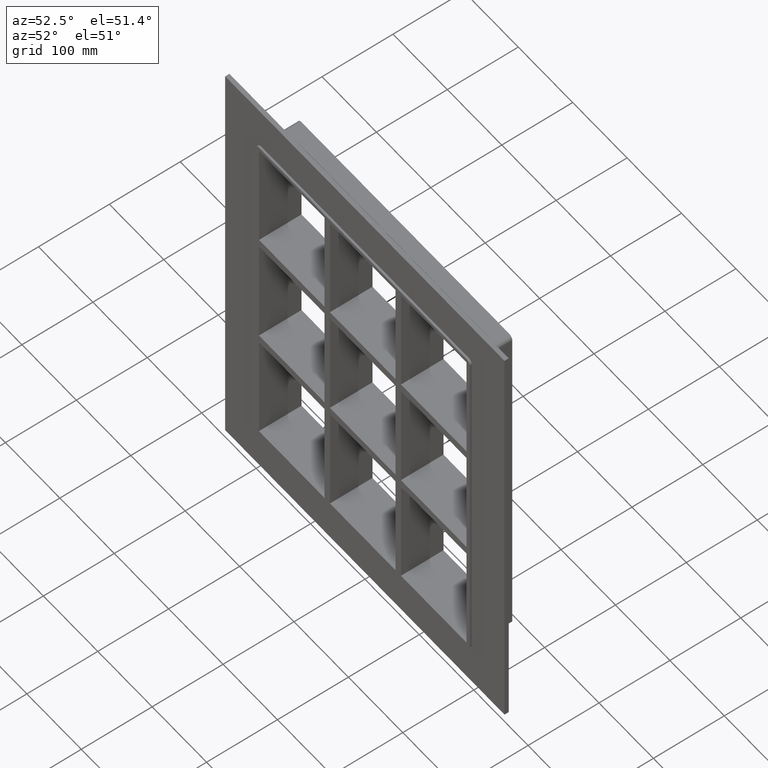
[diagram: clean part render]
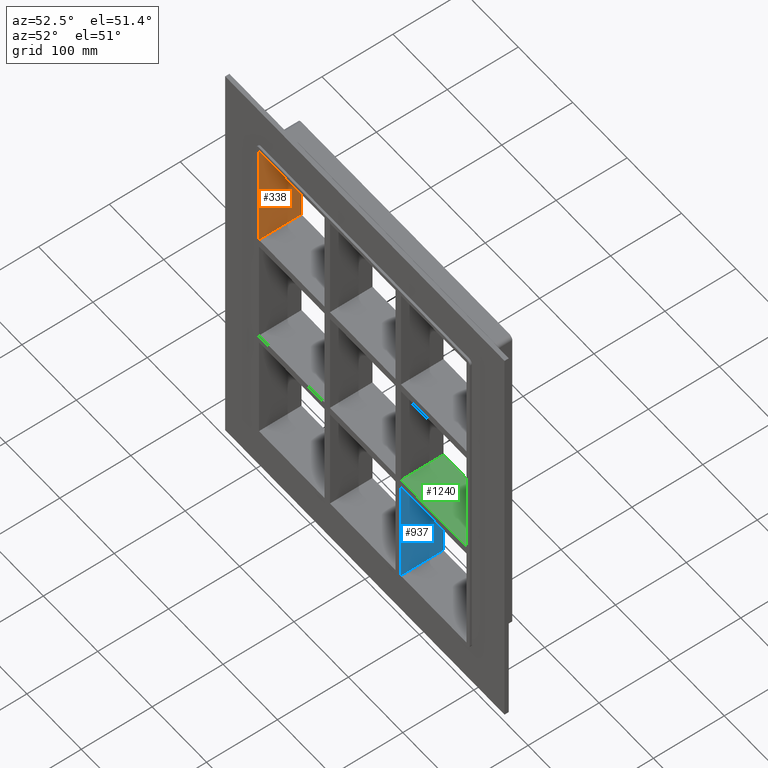
[diagram: same view with three faces highlighted in distinct colors, each labeled with its STEP entity id]
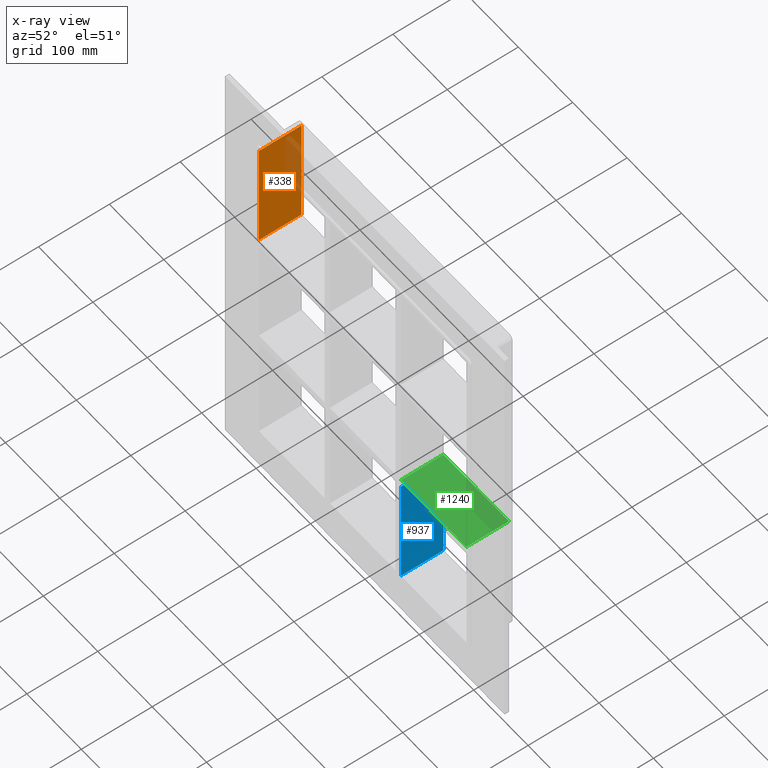
[diagram: x-ray of the same camera — body ghosted, the three highlighted faces saturated]
A machine part, auxiliary view with three faces highlighted in distinct colors.
The next image is the same camera in x-ray (body ghosted, the three faces saturated) — at least one of them is partly hidden behind the body in this view.
Their STEP definitions:

[orange] entity #338 — the highlighted planar face has unit normal (-1, 0, 0).
#203=CARTESIAN_POINT('',(-190.74999999999977,57.0,91.750000000000085));
#204=VERTEX_POINT('',#203);
#211=CARTESIAN_POINT('',(-190.74999999999977,-3.0,91.750000000000085));
#212=VERTEX_POINT('',#211);
#213=CARTESIAN_POINT('',(-190.75000000000011,-3.0,91.750000000000085));
#214=DIRECTION('',(0.0,1.0,0.0));
#215=VECTOR('',#214,60.000000000000007);
#216=LINE('',#213,#215);
#217=EDGE_CURVE('',#212,#204,#216,.T.);
#308=CARTESIAN_POINT('',(-190.75000000000011,0.0,-251.25000000000003));
#309=DIRECTION('',(-1.0,0.0,0.0));
#310=DIRECTION('',(0.0,0.0,1.0));
#311=AXIS2_PLACEMENT_3D('',#308,#309,#310);
#312=PLANE('',#311);
#313=ORIENTED_EDGE('',*,*,#217,.T.);
#314=CARTESIAN_POINT('',(-190.75000000000011,57.0,251.24999999999997));
#315=VERTEX_POINT('',#314);
#316=CARTESIAN_POINT('',(-190.75000000000011,57.0,251.25));
#317=DIRECTION('',(0.0,0.0,-1.0));
#318=VECTOR('',#317,159.49999999999989);
#319=LINE('',#316,#318);
#320=EDGE_CURVE('',#315,#204,#319,.T.);
#321=ORIENTED_EDGE('',*,*,#320,.F.);
#322=CARTESIAN_POINT('',(-190.75000000000011,-3.0,251.24999999999997));
#323=VERTEX_POINT('',#322);
#324=CARTESIAN_POINT('',(-190.75000000000011,-3.0,251.25));
#325=DIRECTION('',(0.0,1.0,0.0));
#326=VECTOR('',#325,60.0);
#327=LINE('',#324,#326);
#328=EDGE_CURVE('',#323,#315,#327,.T.);
#329=ORIENTED_EDGE('',*,*,#328,.F.);
#330=CARTESIAN_POINT('',(-190.75000000000011,-3.0,91.750000000000099));
#331=DIRECTION('',(0.0,0.0,1.0));
#332=VECTOR('',#331,159.49999999999989);
#333=LINE('',#330,#332);
#334=EDGE_CURVE('',#212,#323,#333,.T.);
#335=ORIENTED_EDGE('',*,*,#334,.F.);
#336=EDGE_LOOP('',(#313,#321,#329,#335));
#337=FACE_OUTER_BOUND('',#336,.T.);
#338=ADVANCED_FACE('',(#337),#312,.F.);

[blue] entity #937 — the highlighted planar face has unit normal (1, 0, 0).
#793=CARTESIAN_POINT('',(70.250000000003638,57.0,-251.24999999998425));
#794=VERTEX_POINT('',#793);
#811=CARTESIAN_POINT('',(70.250000000003638,57.0,-91.750000000009322));
#812=VERTEX_POINT('',#811);
#819=CARTESIAN_POINT('',(70.250000000003638,57.0,-91.750000000009294));
#820=DIRECTION('',(0.0,0.0,-1.0));
#821=VECTOR('',#820,159.49999999997493);
#822=LINE('',#819,#821);
#823=EDGE_CURVE('',#812,#794,#822,.T.);
#907=CARTESIAN_POINT('',(70.250000000003638,-3.0,251.24999999999997));
#908=DIRECTION('',(1.0,0.0,0.0));
#909=DIRECTION('',(0.0,0.0,-1.0));
#910=AXIS2_PLACEMENT_3D('',#907,#908,#909);
#911=PLANE('',#910);
#912=CARTESIAN_POINT('',(70.250000000003638,-3.0,-91.750000000009322));
#913=VERTEX_POINT('',#912);
#914=CARTESIAN_POINT('',(70.250000000003638,-3.0,-91.750000000009337));
#915=DIRECTION('',(0.0,1.0,0.0));
#916=VECTOR('',#915,60.0);
#917=LINE('',#914,#916);
#918=EDGE_CURVE('',#913,#812,#917,.T.);
#919=ORIENTED_EDGE('',*,*,#918,.F.);
#920=CARTESIAN_POINT('',(70.250000000003638,-3.0,-251.24999999998425));
#921=VERTEX_POINT('',#920);
#922=CARTESIAN_POINT('',(70.250000000003638,-3.0,-91.750000000009294));
#923=DIRECTION('',(0.0,0.0,-1.0));
#924=VECTOR('',#923,159.49999999997493);
#925=LINE('',#922,#924);
#926=EDGE_CURVE('',#913,#921,#925,.T.);
#927=ORIENTED_EDGE('',*,*,#926,.T.);
#928=CARTESIAN_POINT('',(70.250000000003638,57.000000000000007,-251.25000000000003));
#929=DIRECTION('',(0.0,-1.0,0.0));
#930=VECTOR('',#929,60.000000000000007);
#931=LINE('',#928,#930);
#932=EDGE_CURVE('',#794,#921,#931,.T.);
#933=ORIENTED_EDGE('',*,*,#932,.F.);
#934=ORIENTED_EDGE('',*,*,#823,.F.);
#935=EDGE_LOOP('',(#919,#927,#933,#934));
#936=FACE_OUTER_BOUND('',#935,.T.);
#937=ADVANCED_FACE('',(#936),#911,.T.);

[green] entity #1240 — the highlighted planar face has unit normal (0, 0, 1).
#345=CARTESIAN_POINT('',(190.74999999999991,57.0,-79.749999999999943));
#346=VERTEX_POINT('',#345);
#353=CARTESIAN_POINT('',(190.74999999999991,-3.0,-79.749999999999943));
#354=VERTEX_POINT('',#353);
#355=CARTESIAN_POINT('',(190.75000000000003,57.000000000000007,-79.749999999999943));
#356=DIRECTION('',(0.0,-1.0,0.0));
#357=VECTOR('',#356,60.000000000000007);
#358=LINE('',#355,#357);
#359=EDGE_CURVE('',#346,#354,#358,.T.);
#672=CARTESIAN_POINT('',(70.250000000003638,57.0,-79.749999999999972));
#673=VERTEX_POINT('',#672);
#680=CARTESIAN_POINT('',(70.250000000003638,57.0,-79.749999999999943));
#681=DIRECTION('',(1.0,0.0,0.0));
#682=VECTOR('',#681,120.49999999999631);
#683=LINE('',#680,#682);
#684=EDGE_CURVE('',#673,#346,#683,.T.);
#889=CARTESIAN_POINT('',(70.250000000003638,-3.0,-79.749999999999972));
#890=VERTEX_POINT('',#889);
#897=CARTESIAN_POINT('',(70.250000000003638,57.0,-79.749999999999957));
#898=DIRECTION('',(0.0,-1.0,0.0));
#899=VECTOR('',#898,60.0);
#900=LINE('',#897,#899);
#901=EDGE_CURVE('',#673,#890,#900,.T.);
#1073=CARTESIAN_POINT('',(70.250000000003638,-3.0,-79.749999999999943));
#1074=DIRECTION('',(1.0,0.0,0.0));
#1075=VECTOR('',#1074,120.49999999999631);
#1076=LINE('',#1073,#1075);
#1077=EDGE_CURVE('',#890,#354,#1076,.T.);
#1229=CARTESIAN_POINT('',(-190.74999999999977,-3.0,-79.749999999999943));
#1230=DIRECTION('',(0.0,0.0,1.0));
#1231=DIRECTION('',(1.0,0.0,0.0));
#1232=AXIS2_PLACEMENT_3D('',#1229,#1230,#1231);
#1233=PLANE('',#1232);
#1234=ORIENTED_EDGE('',*,*,#901,.T.);
#1235=ORIENTED_EDGE('',*,*,#1077,.T.);
#1236=ORIENTED_EDGE('',*,*,#359,.F.);
#1237=ORIENTED_EDGE('',*,*,#684,.F.);
#1238=EDGE_LOOP('',(#1234,#1235,#1236,#1237));
#1239=FACE_OUTER_BOUND('',#1238,.T.);
#1240=ADVANCED_FACE('',(#1239),#1233,.T.);